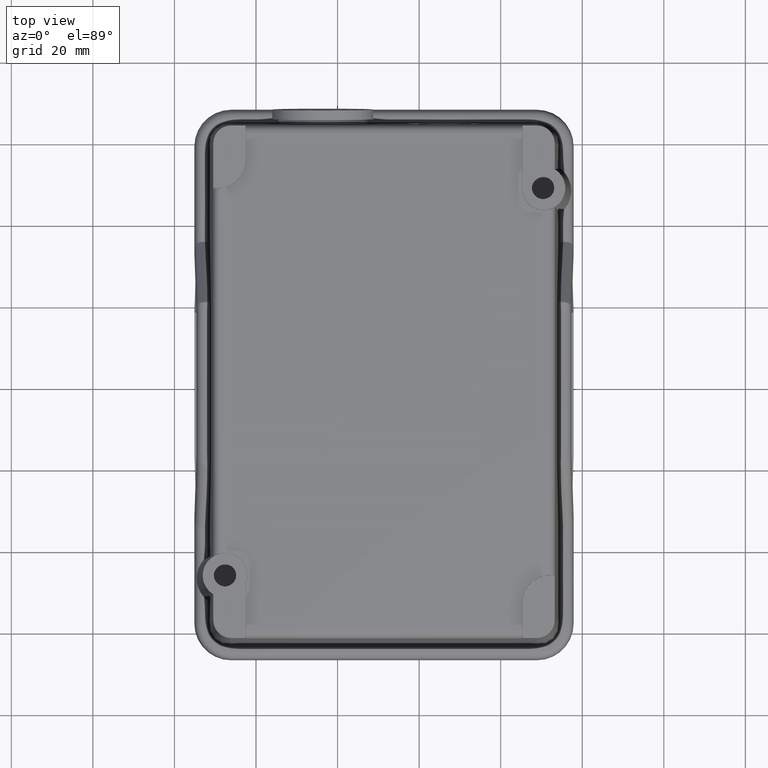
[diagram: clean part render]
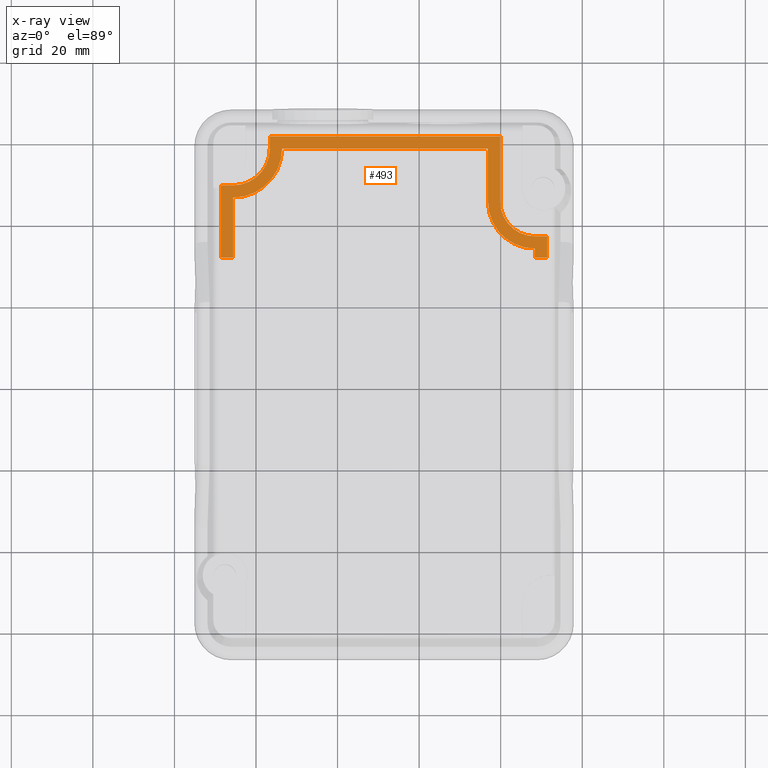
[diagram: x-ray — body ghosted, one internal face saturated and labeled with its STEP entity id]
A machine part, top view, then the same camera in x-ray: the body is ghosted and one INTERNAL B-rep face — a face not visible from any outside direction — is saturated and labeled: STEP entity #493.
In plain terms, the highlighted planar face has unit normal (0, 0, -1).
Its self-contained STEP definition (entity closure, byte-faithful):
#122=CARTESIAN_POINT('',(68.385091562882252,71.872534022317197,-2.999999999999992));
#123=VERTEX_POINT('',#122);
#130=CARTESIAN_POINT('',(71.385091562882238,71.872534022317197,-2.999999999999976));
#131=VERTEX_POINT('',#130);
#132=CARTESIAN_POINT('',(68.385091562882252,71.872534022317197,-2.999999999999992));
#133=DIRECTION('',(1.0,0.0,0.0));
#134=VECTOR('',#133,2.999999999999986);
#135=LINE('',#132,#134);
#136=EDGE_CURVE('',#123,#131,#135,.T.);
#183=CARTESIAN_POINT('',(71.385091562882252,77.099587009445031,-3.000000000000023));
#184=VERTEX_POINT('',#183);
#193=CARTESIAN_POINT('',(68.385091562882735,77.099587009445230,-3.000000000000023));
#194=VERTEX_POINT('',#193);
#195=CARTESIAN_POINT('',(68.385091562882735,77.099587009445230,-3.000000000000023));
#196=DIRECTION('',(1.0,0.0,0.0));
#197=VECTOR('',#196,2.999999999999517);
#198=LINE('',#195,#197);
#199=EDGE_CURVE('',#194,#184,#198,.T.);
#224=CARTESIAN_POINT('',(59.885091562884284,85.599587009445656,-3.000000000000023));
#225=VERTEX_POINT('',#224);
#226=CARTESIAN_POINT('',(68.385091562884384,85.599587009445315,-3.000000000000023));
#227=DIRECTION('',(0.0,0.0,1.0));
#228=DIRECTION('',(1.830420E-013,1.0,0.0));
#229=AXIS2_PLACEMENT_3D('',#226,#227,#228);
#230=CIRCLE('',#229,8.500000000000085);
#231=EDGE_CURVE('',#225,#194,#230,.T.);
#257=CARTESIAN_POINT('',(59.885091562884284,101.599587009446370,-3.000000000000023));
#258=VERTEX_POINT('',#257);
#259=CARTESIAN_POINT('',(59.885091562884284,85.599587009445656,-3.000000000000023));
#260=DIRECTION('',(0.0,1.0,0.0));
#261=VECTOR('',#260,16.000000000000711);
#262=LINE('',#259,#261);
#263=EDGE_CURVE('',#225,#258,#262,.T.);
#287=CARTESIAN_POINT('',(3.385091562884340,101.599587009446400,-3.000000000000023));
#288=VERTEX_POINT('',#287);
#297=CARTESIAN_POINT('',(3.385091562886640,98.599587009444193,-3.000000000000023));
#298=VERTEX_POINT('',#297);
#299=CARTESIAN_POINT('',(3.385091562886640,98.599587009444193,-3.000000000000023));
#300=DIRECTION('',(-7.664980E-013,1.0,0.0));
#301=VECTOR('',#300,3.000000000002203);
#302=LINE('',#299,#301);
#303=EDGE_CURVE('',#298,#288,#302,.T.);
#327=CARTESIAN_POINT('',(59.885091562884284,101.599587009446370,-3.000000000000023));
#328=DIRECTION('',(-1.0,0.0,0.0));
#329=VECTOR('',#328,56.499999999999943);
#330=LINE('',#327,#329);
#331=EDGE_CURVE('',#258,#288,#330,.T.);
#349=CARTESIAN_POINT('',(-8.614908437115336,89.599587009437727,-3.000000000000023));
#350=VERTEX_POINT('',#349);
#367=CARTESIAN_POINT('',(-5.614908437114963,89.599587009437229,-3.000000000000023));
#368=VERTEX_POINT('',#367);
#375=CARTESIAN_POINT('',(-5.614908437114963,89.599587009437229,-3.000000000000023));
#376=DIRECTION('',(-1.0,1.657933E-013,0.0));
#377=VECTOR('',#376,3.000000000000373);
#378=LINE('',#375,#377);
#379=EDGE_CURVE('',#368,#350,#378,.T.);
#390=CARTESIAN_POINT('',(-5.614908437113471,98.599587009437343,-3.000000000000023));
#391=DIRECTION('',(0.0,0.0,1.0));
#392=DIRECTION('',(-1.0,-7.593925E-013,0.0));
#393=AXIS2_PLACEMENT_3D('',#390,#391,#392);
#394=CIRCLE('',#393,9.000000000000110);
#395=EDGE_CURVE('',#368,#298,#394,.T.);
#408=CARTESIAN_POINT('',(-8.614908437115343,73.115174709436474,-3.000000000000007));
#409=DIRECTION('',(0.0,0.0,-1.0));
#410=DIRECTION('',(-1.0,0.0,0.0));
#411=AXIS2_PLACEMENT_3D('',#408,#409,#410);
#412=PLANE('',#411);
#413=CARTESIAN_POINT('',(-5.614908437115340,86.599587009437329,-3.000000000000012));
#414=VERTEX_POINT('',#413);
#415=CARTESIAN_POINT('',(-5.614908437115346,71.872534022317197,-3.0));
#416=VERTEX_POINT('',#415);
#417=CARTESIAN_POINT('',(-5.614908437115340,86.599587009437329,-3.000000000000012));
#418=DIRECTION('',(0.0,-1.0,0.0));
#419=VECTOR('',#418,14.727052987120132);
#420=LINE('',#417,#419);
#421=EDGE_CURVE('',#414,#416,#420,.T.);
#422=ORIENTED_EDGE('',*,*,#421,.T.);
#423=CARTESIAN_POINT('',(-8.614908437115345,71.872534022317197,-3.000000000000010));
#424=VERTEX_POINT('',#423);
#425=CARTESIAN_POINT('',(-5.614908437115346,71.872534022317197,-3.0));
#426=DIRECTION('',(-1.0,0.0,0.0));
#427=VECTOR('',#426,2.999999999999998);
#428=LINE('',#425,#427);
#429=EDGE_CURVE('',#416,#424,#428,.T.);
#430=ORIENTED_EDGE('',*,*,#429,.T.);
#431=CARTESIAN_POINT('',(-8.614908437115336,89.599587009437727,-3.000000000000023));
#432=DIRECTION('',(0.0,-1.0,0.0));
#433=VECTOR('',#432,17.727052987120530);
#434=LINE('',#431,#433);
#435=EDGE_CURVE('',#350,#424,#434,.T.);
#436=ORIENTED_EDGE('',*,*,#435,.F.);
#437=ORIENTED_EDGE('',*,*,#379,.F.);
#438=ORIENTED_EDGE('',*,*,#395,.T.);
#439=ORIENTED_EDGE('',*,*,#303,.T.);
#440=ORIENTED_EDGE('',*,*,#331,.F.);
#441=ORIENTED_EDGE('',*,*,#263,.F.);
#442=ORIENTED_EDGE('',*,*,#231,.T.);
#443=ORIENTED_EDGE('',*,*,#199,.T.);
#444=CARTESIAN_POINT('',(71.385091562882238,71.872534022317197,-2.999999999999976));
#445=DIRECTION('',(0.0,1.0,0.0));
#446=VECTOR('',#445,5.227052987127834);
#447=LINE('',#444,#446);
#448=EDGE_CURVE('',#131,#184,#447,.T.);
#449=ORIENTED_EDGE('',*,*,#448,.F.);
#450=ORIENTED_EDGE('',*,*,#136,.F.);
#451=CARTESIAN_POINT('',(68.385091562882280,74.099587009445230,-3.000000000000012));
#452=VERTEX_POINT('',#451);
#453=CARTESIAN_POINT('',(68.385091562882280,74.099587009445230,-3.000000000000012));
#454=DIRECTION('',(0.0,-1.0,0.0));
#455=VECTOR('',#454,2.227052987128033);
#456=LINE('',#453,#455);
#457=EDGE_CURVE('',#452,#123,#456,.T.);
#458=ORIENTED_EDGE('',*,*,#457,.F.);
#459=CARTESIAN_POINT('',(56.885091562884291,85.599587009445656,-3.000000000000012));
#460=VERTEX_POINT('',#459);
#461=CARTESIAN_POINT('',(68.385091562884384,85.599587009445315,-3.000000000000012));
#462=DIRECTION('',(0.0,0.0,1.0));
#463=DIRECTION('',(1.830420E-013,1.0,0.0));
#464=AXIS2_PLACEMENT_3D('',#461,#462,#463);
#465=CIRCLE('',#464,11.500000000000075);
#466=EDGE_CURVE('',#460,#452,#465,.T.);
#467=ORIENTED_EDGE('',*,*,#466,.F.);
#468=CARTESIAN_POINT('',(56.885091562884298,98.599587009446381,-3.000000000000012));
#469=VERTEX_POINT('',#468);
#470=CARTESIAN_POINT('',(56.885091562884298,98.599587009446381,-3.000000000000012));
#471=DIRECTION('',(0.0,-1.0,0.0));
#472=VECTOR('',#471,13.000000000000725);
#473=LINE('',#470,#472);
#474=EDGE_CURVE('',#469,#460,#473,.T.);
#475=ORIENTED_EDGE('',*,*,#474,.F.);
#476=CARTESIAN_POINT('',(6.385091562886629,98.599587009446466,-3.000000000000012));
#477=VERTEX_POINT('',#476);
#478=CARTESIAN_POINT('',(6.385091562886629,98.599587009446466,-3.000000000000012));
#479=DIRECTION('',(1.0,0.0,0.0));
#480=VECTOR('',#479,50.499999999997669);
#481=LINE('',#478,#480);
#482=EDGE_CURVE('',#477,#469,#481,.T.);
#483=ORIENTED_EDGE('',*,*,#482,.F.);
#484=CARTESIAN_POINT('',(-5.614908437113471,98.599587009437343,-3.000000000000012));
#485=DIRECTION('',(0.0,0.0,1.0));
#486=DIRECTION('',(-1.0,-7.593925E-013,0.0));
#487=AXIS2_PLACEMENT_3D('',#484,#485,#486);
#488=CIRCLE('',#487,12.000000000000099);
#489=EDGE_CURVE('',#414,#477,#488,.T.);
#490=ORIENTED_EDGE('',*,*,#489,.F.);
#491=EDGE_LOOP('',(#422,#430,#436,#437,#438,#439,#440,#441,#442,#443,#449,#450,#458,#467,#475,#483,#490));
#492=FACE_OUTER_BOUND('',#491,.T.);
#493=ADVANCED_FACE('',(#492),#412,.T.);